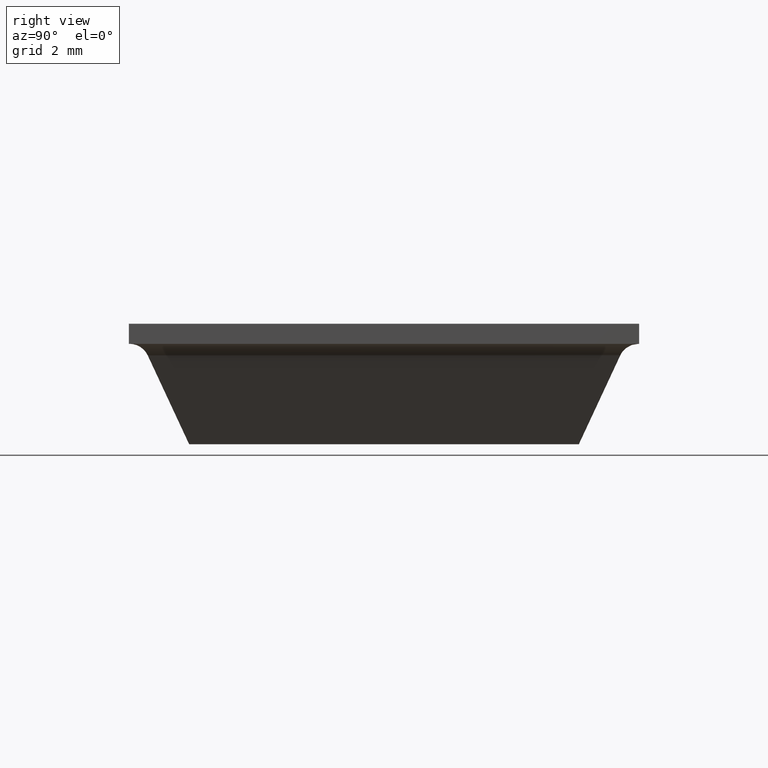
[diagram: clean part render]
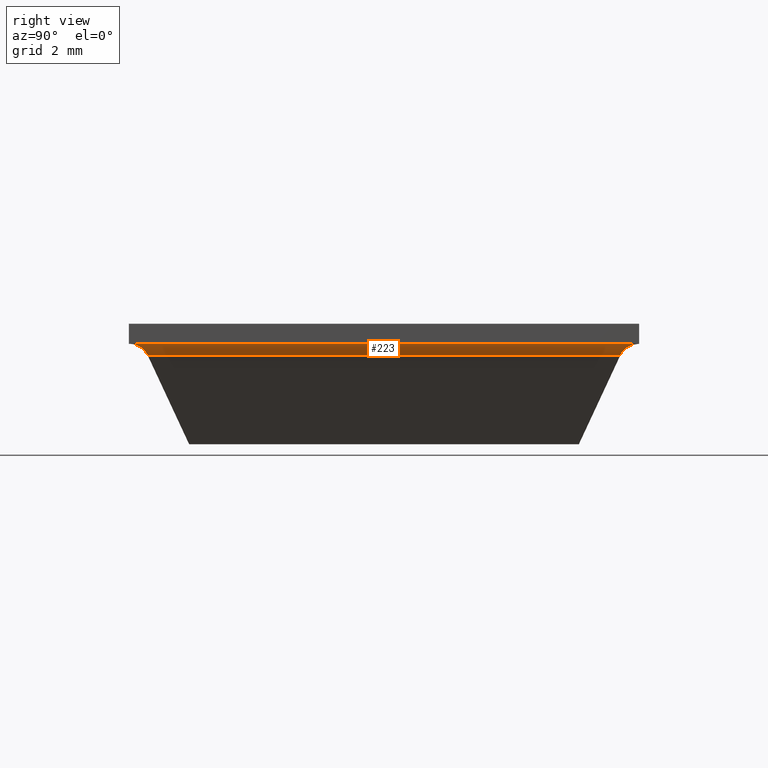
[diagram: same view with one face highlighted and labeled with its STEP entity id]
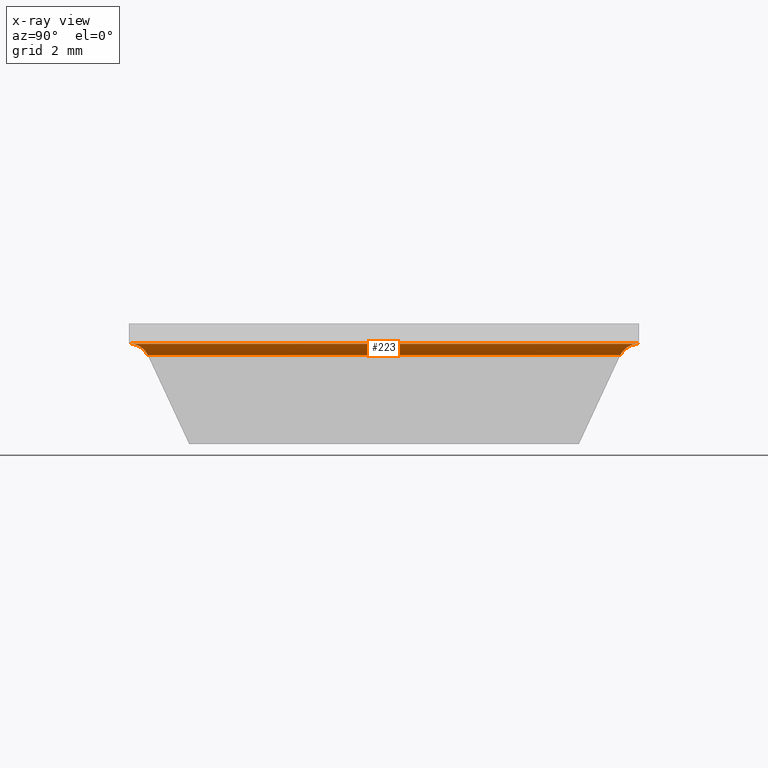
[diagram: x-ray of the same camera — body ghosted, the highlighted face saturated]
A machine part, right view. The second image highlights one B-rep face of the part: STEP entity #223.
The next image is the same camera in x-ray: the body ghosted, the highlighted face saturated — about 0% of this face is hidden behind the body in this view.
In plain terms, the highlighted face is a freeform B-spline surface patch.
Its self-contained STEP definition (entity closure, byte-faithful):
#119=CARTESIAN_POINT('',(6.334303954544160,6.334303954544160,2.500000000000000));
#120=VERTEX_POINT('',#119);
#121=CARTESIAN_POINT('',(5.881150035810720,5.881150035810859,2.211309076796675));
#122=VERTEX_POINT('',#121);
#123=CARTESIAN_POINT('',(6.334303954544160,6.334303954544160,2.500000000000000));
#124=CARTESIAN_POINT('',(6.015768782200919,6.015768782200919,2.500000000000001));
#125=CARTESIAN_POINT('',(5.881150035810720,5.881150035810859,2.211309076796675));
#133=(BOUNDED_CURVE()B_SPLINE_CURVE(2,(#123,#124,#125),.UNSPECIFIED.,.F.,.U.)CURVE()GEOMETRIC_REPRESENTATION_ITEM()QUASI_UNIFORM_CURVE()RATIONAL_B_SPLINE_CURVE((1.0,0.843391413755501,1.0))REPRESENTATION_ITEM(''));
#134=EDGE_CURVE('',#120,#122,#133,.T.);
#164=CARTESIAN_POINT('',(5.881150035810859,-5.881150035810720,2.211309076796675));
#165=VERTEX_POINT('',#164);
#166=CARTESIAN_POINT('',(6.334303954544160,-6.334303954544160,2.500000000000000));
#167=VERTEX_POINT('',#166);
#168=CARTESIAN_POINT('',(5.881150035810859,-5.881150035810720,2.211309076796675));
#169=CARTESIAN_POINT('',(6.015768782200919,-6.015768782200919,2.500000000000001));
#170=CARTESIAN_POINT('',(6.334303954544160,-6.334303954544160,2.500000000000000));
#178=(BOUNDED_CURVE()B_SPLINE_CURVE(2,(#168,#169,#170),.UNSPECIFIED.,.F.,.U.)CURVE()GEOMETRIC_REPRESENTATION_ITEM()QUASI_UNIFORM_CURVE()RATIONAL_B_SPLINE_CURVE((1.0,0.843391413755501,1.0))REPRESENTATION_ITEM(''));
#179=EDGE_CURVE('',#165,#167,#178,.T.);
#195=CARTESIAN_POINT('',(6.347392428698098,-6.651019152271369,2.499828662487778));
#196=CARTESIAN_POINT('',(6.347392428698098,6.658937032214548,2.499828662487778));
#197=CARTESIAN_POINT('',(6.000215764091201,-6.651019152271368,2.508919803397826));
#198=CARTESIAN_POINT('',(6.000215764091201,6.658937032214548,2.508919803397826));
#199=CARTESIAN_POINT('',(5.870493255542651,-6.651019152271369,2.186760904612636));
#200=CARTESIAN_POINT('',(5.870493255542651,6.658937032214548,2.186760904612636));
#208=(BOUNDED_SURFACE()B_SPLINE_SURFACE(1,2,((#195,#197,#199),(#196,#198,#200)),.UNSPECIFIED.,.F.,.F.,.U.)B_SPLINE_SURFACE_WITH_KNOTS((2,2),(3,3),(0.0,13.309956184485920),(0.0,0.993420241738949),.UNSPECIFIED.)GEOMETRIC_REPRESENTATION_ITEM()RATIONAL_B_SPLINE_SURFACE(((1.0,0.820341980119575,0.997635787319055),(1.0,0.820341980119575,0.997635787319055)))REPRESENTATION_ITEM('')SURFACE());
#209=ORIENTED_EDGE('',*,*,#134,.F.);
#210=CARTESIAN_POINT('',(6.334303954544160,-6.334303954544160,2.500000000000000));
#211=CARTESIAN_POINT('',(6.334303954544160,6.334303954544160,2.500000000000000));
#212=QUASI_UNIFORM_CURVE('',1,(#210,#211),.UNSPECIFIED.,.F.,.U.);
#213=EDGE_CURVE('',#167,#120,#212,.T.);
#214=ORIENTED_EDGE('',*,*,#213,.F.);
#215=ORIENTED_EDGE('',*,*,#179,.F.);
#216=CARTESIAN_POINT('',(5.881150035810720,5.881150035810859,2.211309076796675));
#217=CARTESIAN_POINT('',(5.881150035810859,-5.881150035810720,2.211309076796675));
#218=QUASI_UNIFORM_CURVE('',1,(#216,#217),.UNSPECIFIED.,.F.,.U.);
#219=EDGE_CURVE('',#122,#165,#218,.T.);
#220=ORIENTED_EDGE('',*,*,#219,.F.);
#221=EDGE_LOOP('',(#209,#214,#215,#220));
#222=FACE_OUTER_BOUND('',#221,.T.);
#223=ADVANCED_FACE('',(#222),#208,.F.);